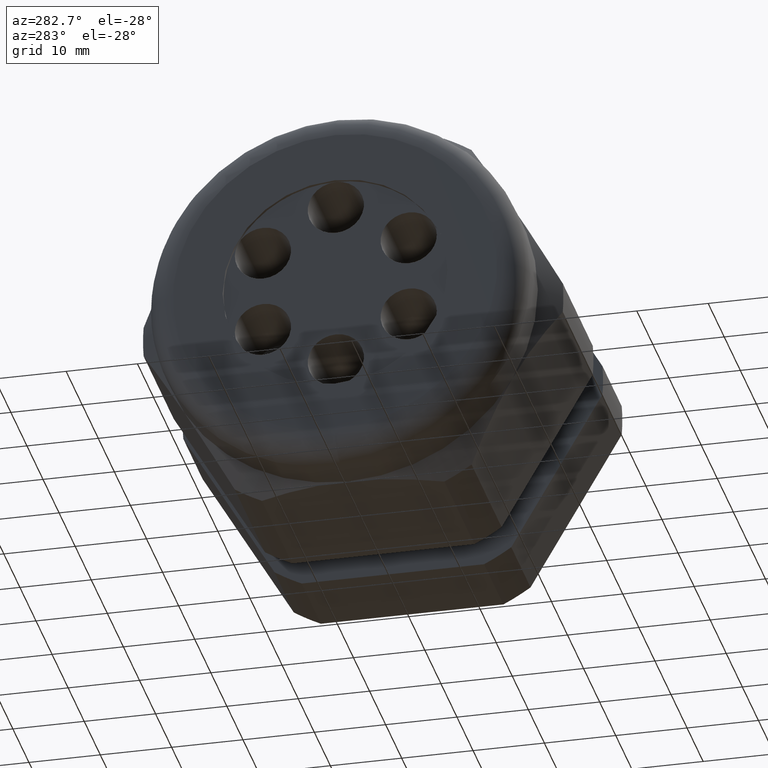
[diagram: clean part render]
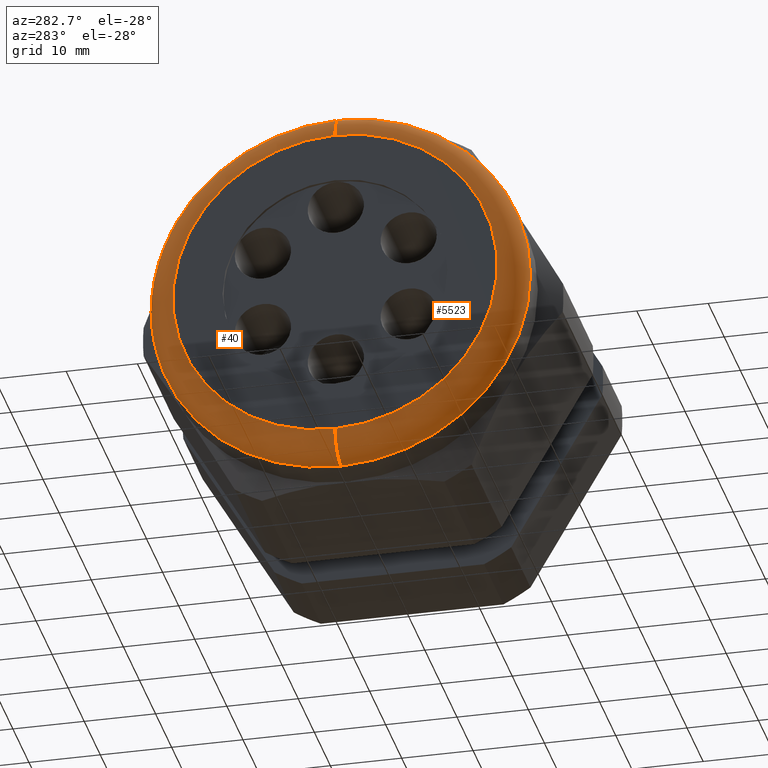
[diagram: same view with one multi-face feature highlighted, each face labeled with its STEP entity id]
A machine part, auxiliary view. The highlighted faces form ONE feature: a constant-radius fillet chain: 2 tangent blend faces with common blend radius 3.81 mm. The faces share edges in the B-rep.
Their STEP definitions:
[1] entity #40 (Torus):
#10 = VERTEX_POINT ( 'NONE', #560 ) ;
#18 = EDGE_CURVE ( 'NONE', #10, #23, #612, .T. ) ;
#19 = ORIENTED_EDGE ( 'NONE', *, *, #18, .F. ) ;
#23 = VERTEX_POINT ( 'NONE', #607 ) ;
#24 = EDGE_CURVE ( 'NONE', #28, #23, #606, .T. ) ;
#25 = ORIENTED_EDGE ( 'NONE', *, *, #24, .T. ) ;
#27 = VERTEX_POINT ( 'NONE', #601 ) ;
#28 = VERTEX_POINT ( 'NONE', #600 ) ;
#30 = EDGE_CURVE ( 'NONE', #28, #27, #592, .T. ) ;
#31 = ORIENTED_EDGE ( 'NONE', *, *, #30, .F. ) ;
#32 = EDGE_LOOP ( 'NONE', ( #31, #25, #19, #3652 ) ) ;
#40 = ADVANCED_FACE ( 'NONE', ( #631 ), #630, .T. ) ;
#560 = CARTESIAN_POINT ( 'NONE',  ( -2.200000000000000200, 0.0000000000000000000, 0.8949999999999999100 ) ) ;
#589 = DIRECTION ( 'NONE',  ( 0.0000000000000000000, 0.0000000000000000000, 1.000000000000000000 ) ) ;
#590 = DIRECTION ( 'NONE',  ( 1.000000000000000000, 0.0000000000000000000, 0.0000000000000000000 ) ) ;
#591 = AXIS2_PLACEMENT_3D ( 'NONE', #597, #590, #589 ) ;
#592 = CIRCLE ( 'NONE', #591, 1.044999999999999900 ) ;
#597 = CARTESIAN_POINT ( 'NONE',  ( -2.049999999999999800, 0.0000000000000000000, 0.0000000000000000000 ) ) ;
#600 = CARTESIAN_POINT ( 'NONE',  ( -2.049999999999999800, 0.0000000000000000000, -1.044999999999999900 ) ) ;
#601 = CARTESIAN_POINT ( 'NONE',  ( -2.049999999999999800, 1.279755905108984100E-016, 1.044999999999999900 ) ) ;
#602 = DIRECTION ( 'NONE',  ( 0.0000000000000000000, -1.224646799147352500E-016, 1.000000000000000000 ) ) ;
#603 = DIRECTION ( 'NONE',  ( 0.0000000000000000000, 1.000000000000000000, 1.224646799147353200E-016 ) ) ;
#604 = CARTESIAN_POINT ( 'NONE',  ( -2.049999999999999800, 1.096058885236880900E-016, -0.8949999999999999100 ) ) ;
#605 = AXIS2_PLACEMENT_3D ( 'NONE', #604, #603, #602 ) ;
#606 = CIRCLE ( 'NONE', #605, 0.1500000000000000500 ) ;
#607 = CARTESIAN_POINT ( 'NONE',  ( -2.200000000000000200, 1.187907395172932400E-016, -0.8949999999999999100 ) ) ;
#608 = DIRECTION ( 'NONE',  ( 0.0000000000000000000, 0.0000000000000000000, 1.000000000000000000 ) ) ;
#609 = DIRECTION ( 'NONE',  ( -1.000000000000000000, 0.0000000000000000000, 0.0000000000000000000 ) ) ;
#610 = CARTESIAN_POINT ( 'NONE',  ( -2.200000000000000200, 0.0000000000000000000, 0.0000000000000000000 ) ) ;
#611 = AXIS2_PLACEMENT_3D ( 'NONE', #610, #609, #608 ) ;
#612 = CIRCLE ( 'NONE', #611, 0.8949999999999999100 ) ;
#626 = DIRECTION ( 'NONE',  ( 0.0000000000000000000, 0.0000000000000000000, 1.000000000000000000 ) ) ;
#628 = DIRECTION ( 'NONE',  ( -1.000000000000000000, 0.0000000000000000000, 0.0000000000000000000 ) ) ;
#629 = AXIS2_PLACEMENT_3D ( 'NONE', #636, #628, #626 ) ;
#630 = TOROIDAL_SURFACE ( 'NONE', #629, 0.8949999999999999100, 0.1499999999999999900 ) ;
#631 = FACE_OUTER_BOUND ( 'NONE', #32, .T. ) ;
#636 = CARTESIAN_POINT ( 'NONE',  ( -2.049999999999999800, 0.0000000000000000000, 0.0000000000000000000 ) ) ;
#1706 = DIRECTION ( 'NONE',  ( 0.0000000000000000000, 0.0000000000000000000, -1.000000000000000000 ) ) ;
#1707 = DIRECTION ( 'NONE',  ( 0.0000000000000000000, -1.000000000000000000, 0.0000000000000000000 ) ) ;
#1708 = CARTESIAN_POINT ( 'NONE',  ( -2.049999999999999800, 0.0000000000000000000, 0.8949999999999999100 ) ) ;
#1709 = AXIS2_PLACEMENT_3D ( 'NONE', #1708, #1707, #1706 ) ;
#1715 = CIRCLE ( 'NONE', #1709, 0.1500000000000000500 ) ;
#3652 = ORIENTED_EDGE ( 'NONE', *, *, #3660, .F. ) ;
#3660 = EDGE_CURVE ( 'NONE', #27, #10, #1715, .T. ) ;
[2] entity #5523 (Torus):
#10 = VERTEX_POINT ( 'NONE', #560 ) ;
#23 = VERTEX_POINT ( 'NONE', #607 ) ;
#24 = EDGE_CURVE ( 'NONE', #28, #23, #606, .T. ) ;
#27 = VERTEX_POINT ( 'NONE', #601 ) ;
#28 = VERTEX_POINT ( 'NONE', #600 ) ;
#560 = CARTESIAN_POINT ( 'NONE',  ( -2.200000000000000200, 0.0000000000000000000, 0.8949999999999999100 ) ) ;
#600 = CARTESIAN_POINT ( 'NONE',  ( -2.049999999999999800, 0.0000000000000000000, -1.044999999999999900 ) ) ;
#601 = CARTESIAN_POINT ( 'NONE',  ( -2.049999999999999800, 1.279755905108984100E-016, 1.044999999999999900 ) ) ;
#602 = DIRECTION ( 'NONE',  ( 0.0000000000000000000, -1.224646799147352500E-016, 1.000000000000000000 ) ) ;
#603 = DIRECTION ( 'NONE',  ( 0.0000000000000000000, 1.000000000000000000, 1.224646799147353200E-016 ) ) ;
#604 = CARTESIAN_POINT ( 'NONE',  ( -2.049999999999999800, 1.096058885236880900E-016, -0.8949999999999999100 ) ) ;
#605 = AXIS2_PLACEMENT_3D ( 'NONE', #604, #603, #602 ) ;
#606 = CIRCLE ( 'NONE', #605, 0.1500000000000000500 ) ;
#607 = CARTESIAN_POINT ( 'NONE',  ( -2.200000000000000200, 1.187907395172932400E-016, -0.8949999999999999100 ) ) ;
#1706 = DIRECTION ( 'NONE',  ( 0.0000000000000000000, 0.0000000000000000000, -1.000000000000000000 ) ) ;
#1707 = DIRECTION ( 'NONE',  ( 0.0000000000000000000, -1.000000000000000000, 0.0000000000000000000 ) ) ;
#1708 = CARTESIAN_POINT ( 'NONE',  ( -2.049999999999999800, 0.0000000000000000000, 0.8949999999999999100 ) ) ;
#1709 = AXIS2_PLACEMENT_3D ( 'NONE', #1708, #1707, #1706 ) ;
#1715 = CIRCLE ( 'NONE', #1709, 0.1500000000000000500 ) ;
#2980 = DIRECTION ( 'NONE',  ( 0.0000000000000000000, 0.0000000000000000000, 1.000000000000000000 ) ) ;
#2981 = DIRECTION ( 'NONE',  ( 1.000000000000000000, 0.0000000000000000000, 0.0000000000000000000 ) ) ;
#2982 = CARTESIAN_POINT ( 'NONE',  ( -2.049999999999999800, 0.0000000000000000000, 0.0000000000000000000 ) ) ;
#2983 = AXIS2_PLACEMENT_3D ( 'NONE', #2982, #2981, #2980 ) ;
#2988 = CIRCLE ( 'NONE', #2983, 1.044999999999999900 ) ;
#3048 = DIRECTION ( 'NONE',  ( 0.0000000000000000000, 0.0000000000000000000, 1.000000000000000000 ) ) ;
#3049 = DIRECTION ( 'NONE',  ( -1.000000000000000000, 0.0000000000000000000, 0.0000000000000000000 ) ) ;
#3050 = CARTESIAN_POINT ( 'NONE',  ( -2.200000000000000200, 0.0000000000000000000, 0.0000000000000000000 ) ) ;
#3051 = AXIS2_PLACEMENT_3D ( 'NONE', #3050, #3049, #3048 ) ;
#3056 = CIRCLE ( 'NONE', #3051, 0.8949999999999999100 ) ;
#3660 = EDGE_CURVE ( 'NONE', #27, #10, #1715, .T. ) ;
#4081 = DIRECTION ( 'NONE',  ( 0.0000000000000000000, 0.0000000000000000000, 1.000000000000000000 ) ) ;
#4082 = DIRECTION ( 'NONE',  ( -1.000000000000000000, 0.0000000000000000000, 0.0000000000000000000 ) ) ;
#4083 = AXIS2_PLACEMENT_3D ( 'NONE', #4085, #4082, #4081 ) ;
#4084 = TOROIDAL_SURFACE ( 'NONE', #4083, 0.8949999999999999100, 0.1499999999999999900 ) ;
#4085 = CARTESIAN_POINT ( 'NONE',  ( -2.049999999999999800, 0.0000000000000000000, 0.0000000000000000000 ) ) ;
#4086 = FACE_OUTER_BOUND ( 'NONE', #5517, .T. ) ;
#4918 = EDGE_CURVE ( 'NONE', #27, #28, #2988, .T. ) ;
#4951 = EDGE_CURVE ( 'NONE', #23, #10, #3056, .T. ) ;
#5513 = ORIENTED_EDGE ( 'NONE', *, *, #4918, .F. ) ;
#5517 = EDGE_LOOP ( 'NONE', ( #5522, #5513, #5519, #5524 ) ) ;
#5519 = ORIENTED_EDGE ( 'NONE', *, *, #3660, .T. ) ;
#5522 = ORIENTED_EDGE ( 'NONE', *, *, #24, .F. ) ;
#5523 = ADVANCED_FACE ( 'NONE', ( #4086 ), #4084, .T. ) ;
#5524 = ORIENTED_EDGE ( 'NONE', *, *, #4951, .F. ) ;